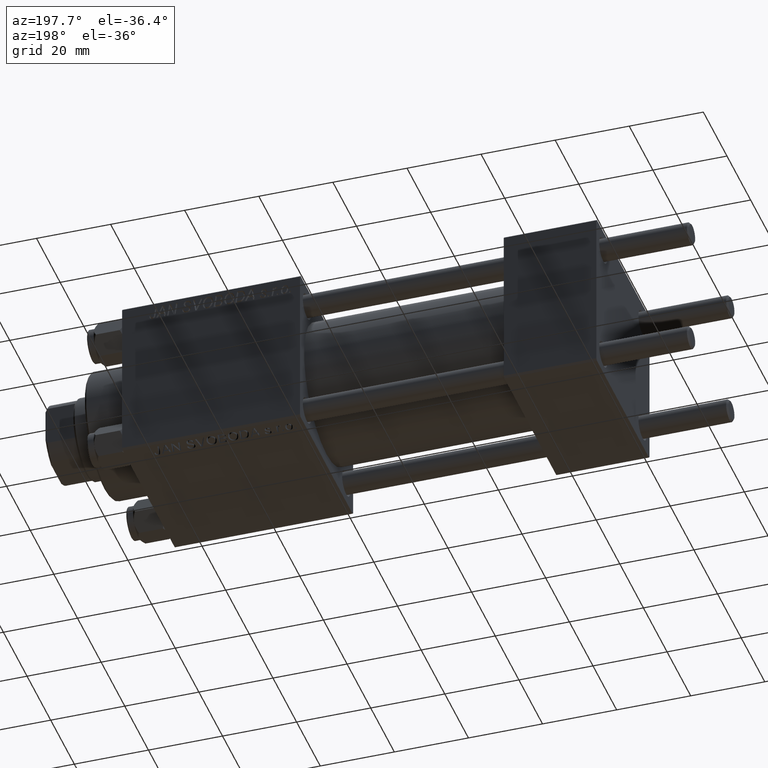
[diagram: clean part render]
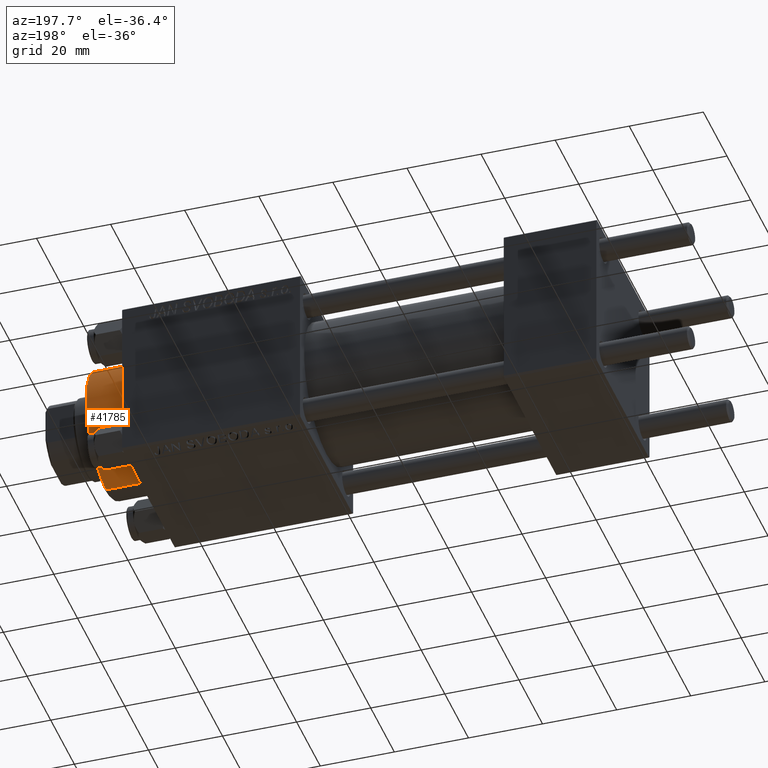
[diagram: same view with one face highlighted and labeled with its STEP entity id]
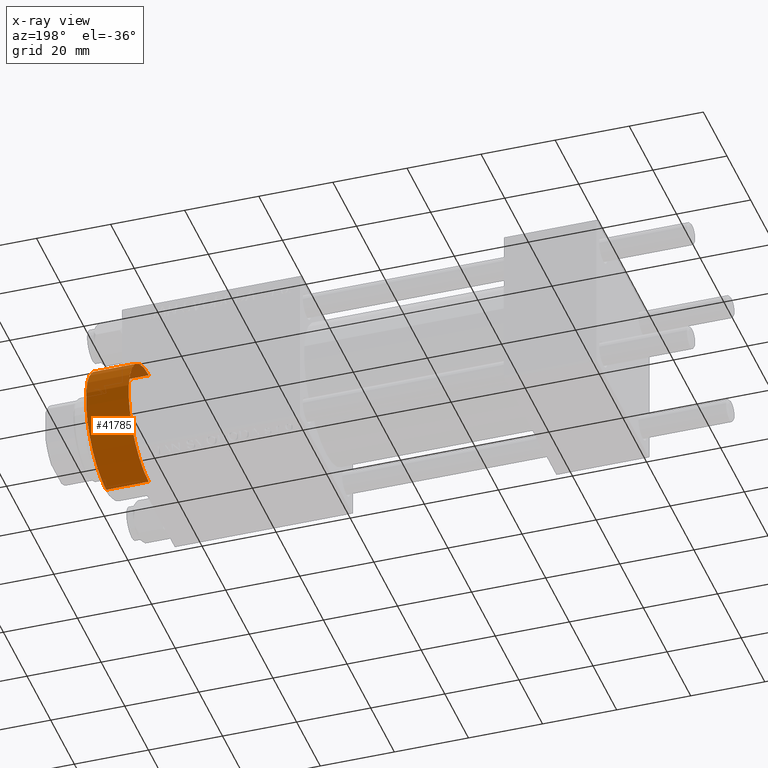
[diagram: x-ray of the same camera — body ghosted, the highlighted face saturated]
A machine part, auxiliary view. The second image highlights one B-rep face of the part: STEP entity #41785.
The next image is the same camera in x-ray: the body ghosted, the highlighted face saturated — about 3% of this face is hidden behind the body in this view.
In plain terms, the highlighted cylindrical surface (partial cylindrical patch) has radius 17 mm, axis along (-1, -0, 0).
Its self-contained STEP definition (entity closure, byte-faithful):
#60 = FACE_OUTER_BOUND ( 'NONE', #17833, .T. ) ;
#772 = EDGE_CURVE ( 'NONE', #42224, #19814, #24350, .T. ) ;
#4630 = CARTESIAN_POINT ( 'NONE',  ( -17.00000000000000000, 0.000000000000000000, 40.70000000000000284 ) ) ;
#6319 = LINE ( 'NONE', #16942, #34809 ) ;
#7884 = CYLINDRICAL_SURFACE ( 'NONE', #21206, 17.00000000000000000 ) ;
#8432 = VECTOR ( 'NONE', #35212, 1000.000000000000000 ) ;
#12663 = VERTEX_POINT ( 'NONE', #37688 ) ;
#15486 = CARTESIAN_POINT ( 'NONE',  ( 0.000000000000000000, 0.000000000000000000, 40.70000000000000284 ) ) ;
#16942 = CARTESIAN_POINT ( 'NONE',  ( 17.00000000000000000, 2.081899558550500280E-15, 40.70000000000000284 ) ) ;
#17687 = AXIS2_PLACEMENT_3D ( 'NONE', #20359, #25161, #47437 ) ;
#17701 = DIRECTION ( 'NONE',  ( -0.000000000000000000, -0.000000000000000000, -1.000000000000000000 ) ) ;
#17833 = EDGE_LOOP ( 'NONE', ( #33667, #31705, #49443, #42929 ) ) ;
#19814 = VERTEX_POINT ( 'NONE', #22822 ) ;
#20359 = CARTESIAN_POINT ( 'NONE',  ( 0.000000000000000000, 0.000000000000000000, 40.19999999999999574 ) ) ;
#20485 = DIRECTION ( 'NONE',  ( 1.000000000000000000, 0.000000000000000000, 0.000000000000000000 ) ) ;
#21206 = AXIS2_PLACEMENT_3D ( 'NONE', #15486, #31155, #46599 ) ;
#22822 = CARTESIAN_POINT ( 'NONE',  ( -17.00000000000000000, 0.000000000000000000, 28.69999999999999929 ) ) ;
#22991 = VERTEX_POINT ( 'NONE', #44729 ) ;
#24350 = LINE ( 'NONE', #4630, #8432 ) ;
#25161 = DIRECTION ( 'NONE',  ( 0.000000000000000000, 0.000000000000000000, -1.000000000000000000 ) ) ;
#28922 = EDGE_CURVE ( 'NONE', #42224, #12663, #31441, .T. ) ;
#29999 = CIRCLE ( 'NONE', #33192, 17.00000000000000000 ) ;
#31155 = DIRECTION ( 'NONE',  ( -0.000000000000000000, -0.000000000000000000, -1.000000000000000000 ) ) ;
#31441 = CIRCLE ( 'NONE', #17687, 17.00000000000000000 ) ;
#31705 = ORIENTED_EDGE ( 'NONE', *, *, #38856, .T. ) ;
#31842 = CARTESIAN_POINT ( 'NONE',  ( -17.00000000000000000, 0.000000000000000000, 40.19999999999999574 ) ) ;
#33192 = AXIS2_PLACEMENT_3D ( 'NONE', #38715, #35908, #20485 ) ;
#33667 = ORIENTED_EDGE ( 'NONE', *, *, #28922, .T. ) ;
#34809 = VECTOR ( 'NONE', #17701, 1000.000000000000000 ) ;
#35212 = DIRECTION ( 'NONE',  ( -0.000000000000000000, -0.000000000000000000, -1.000000000000000000 ) ) ;
#35908 = DIRECTION ( 'NONE',  ( 0.000000000000000000, 0.000000000000000000, 1.000000000000000000 ) ) ;
#37688 = CARTESIAN_POINT ( 'NONE',  ( 17.00000000000000000, 2.081899558550500280E-15, 40.19999999999999574 ) ) ;
#38575 = EDGE_CURVE ( 'NONE', #22991, #19814, #29999, .T. ) ;
#38715 = CARTESIAN_POINT ( 'NONE',  ( 0.000000000000000000, 0.000000000000000000, 28.69999999999999929 ) ) ;
#38856 = EDGE_CURVE ( 'NONE', #12663, #22991, #6319, .T. ) ;
#41785 = ADVANCED_FACE ( 'NONE', ( #60 ), #7884, .T. ) ;
#42224 = VERTEX_POINT ( 'NONE', #31842 ) ;
#42929 = ORIENTED_EDGE ( 'NONE', *, *, #772, .F. ) ;
#44729 = CARTESIAN_POINT ( 'NONE',  ( 17.00000000000000000, 2.081899558550500280E-15, 28.69999999999999929 ) ) ;
#46599 = DIRECTION ( 'NONE',  ( -1.000000000000000000, 0.000000000000000000, 0.000000000000000000 ) ) ;
#47437 = DIRECTION ( 'NONE',  ( 1.000000000000000000, 0.000000000000000000, 0.000000000000000000 ) ) ;
#49443 = ORIENTED_EDGE ( 'NONE', *, *, #38575, .T. ) ;